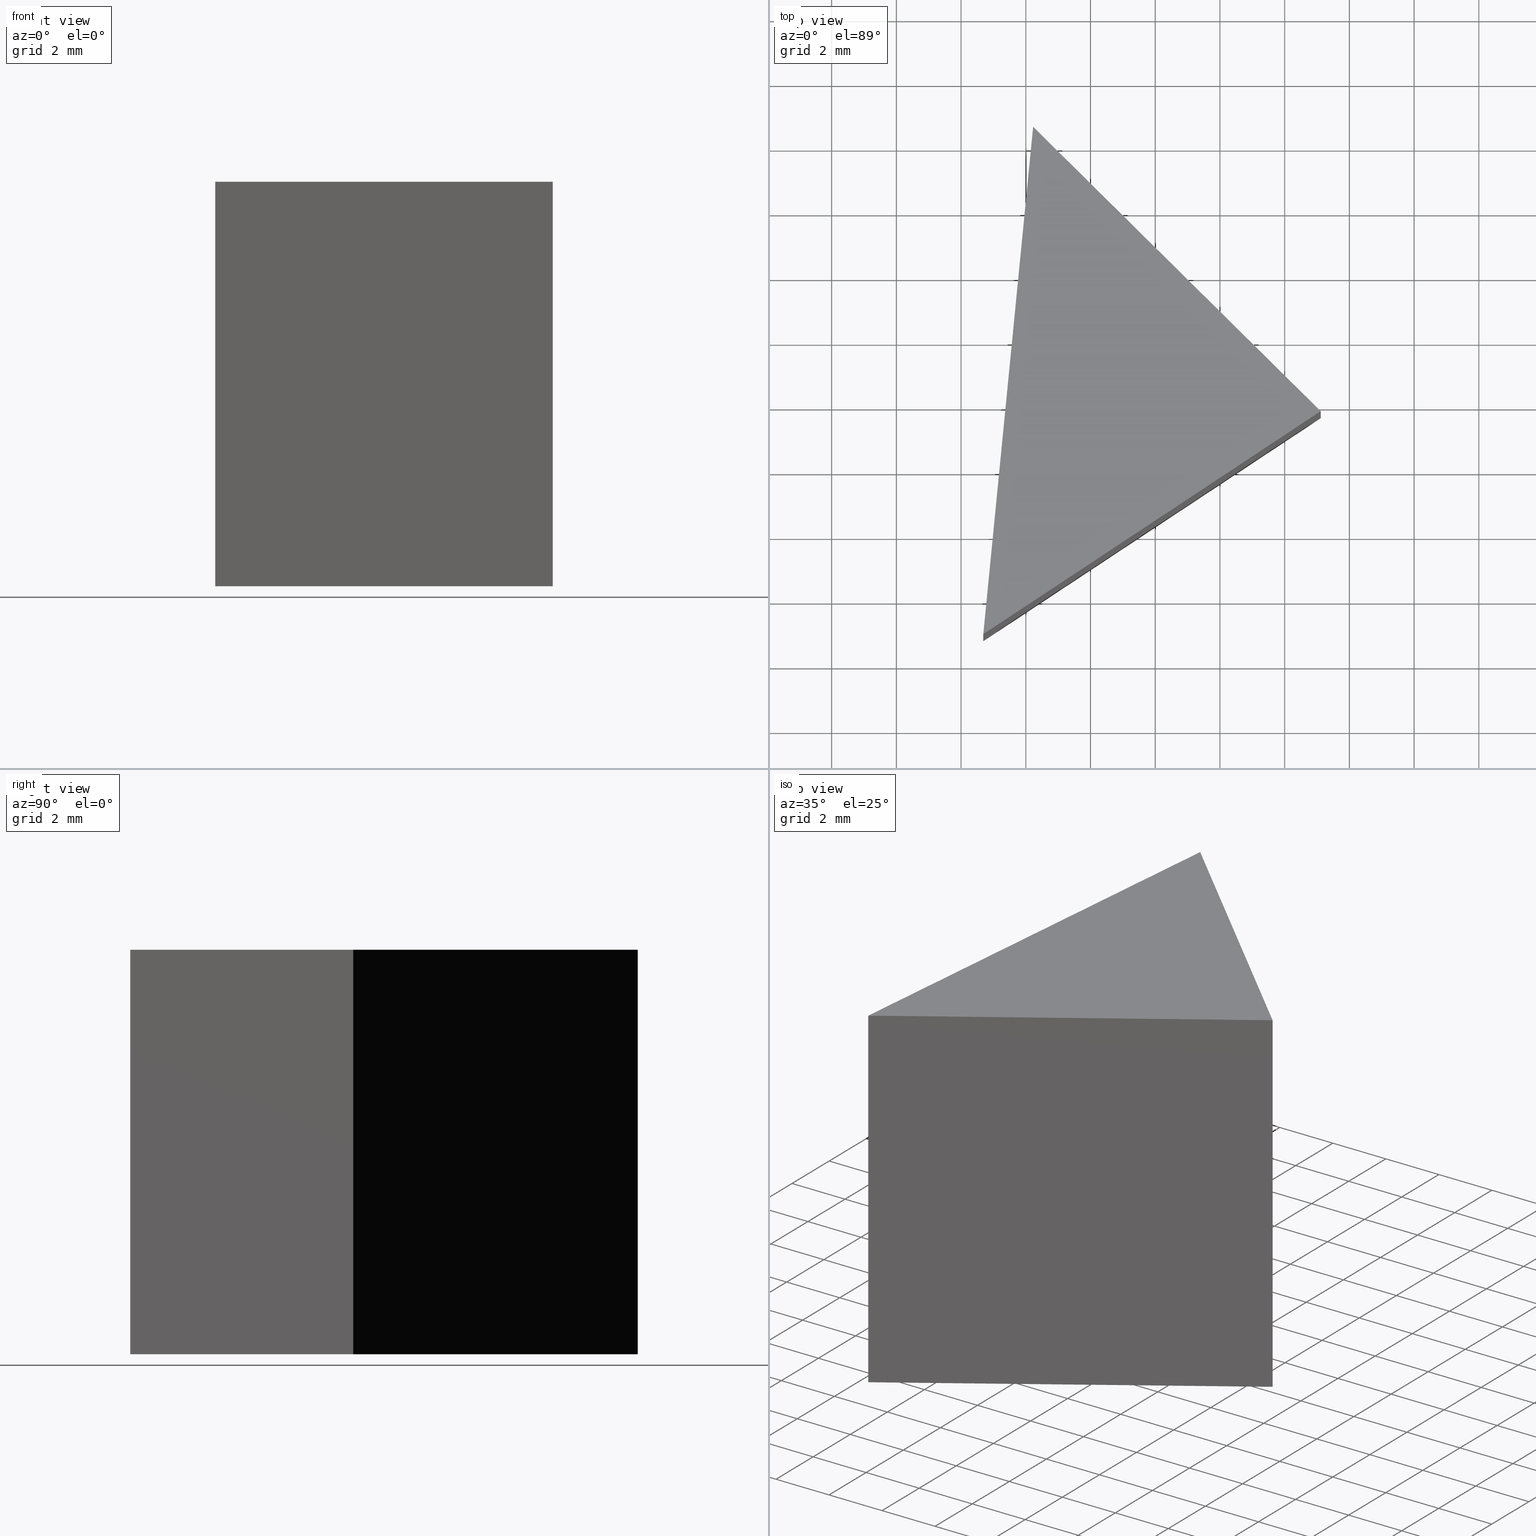
[diagram: canonical four-view strip — front | top / right | iso, engineering-drawing reading convention]
A machine part, canonical four-view strip (front | top / right | iso — engineering-drawing reading convention). The complete STEP part file that produces these views, byte-faithful:
ISO-10303-21;
HEADER;
FILE_DESCRIPTION (( 'STEP AP214' ),
    '1' );
FILE_NAME ('469002.STEP',
    '2019-08-23T02:32:26',
    ( 'user' ),
    ( '΢���й�' ),
    'SwSTEP 2.0',
    'SolidWorks 2016',
    '' );
FILE_SCHEMA (( 'AUTOMOTIVE_DESIGN' ));
ENDSEC;

DATA;
#1 = PRODUCT_CONTEXT ( 'NONE', #74, 'mechanical' ) ;
#2 = CARTESIAN_POINT ( 'NONE',  ( 11.11417082101136700, 7.739990180066555100, 0.0000000000000000000 ) ) ;
#3 = CARTESIAN_POINT ( 'NONE',  ( 11.11417082101136700, 7.739990180066555100, 0.0000000000000000000 ) ) ;
#4 = PRODUCT_DEFINITION ( 'δ֪', '', #60, #32 ) ;
#5 = EDGE_LOOP ( 'NONE', ( #106, #163, #100, #44 ) ) ;
#6 = ORIENTED_EDGE ( 'NONE', *, *, #133, .F. ) ;
#7 = ORIENTED_EDGE ( 'NONE', *, *, #155, .T. ) ;
#8 = SURFACE_STYLE_FILL_AREA ( #63 ) ;
#9 = EDGE_LOOP ( 'NONE', ( #113, #70, #119 ) ) ;
#10 = STYLED_ITEM ( 'NONE', ( #84 ), #111 ) ;
#11 = PLANE ( 'NONE',  #162 ) ;
#12 = SURFACE_SIDE_STYLE ('',( #86 ) ) ;
#13 = MECHANICAL_DESIGN_GEOMETRIC_PRESENTATION_REPRESENTATION (  '', ( #40 ), #165 ) ;
#14 =( NAMED_UNIT ( * ) SI_UNIT ( $, .STERADIAN. ) SOLID_ANGLE_UNIT ( ) );
#15 = CARTESIAN_POINT ( 'NONE',  ( 11.11417082101136700, 7.739990180066555100, 12.50000000000000000 ) ) ;
#16 = CARTESIAN_POINT ( 'NONE',  ( 2.227010525918083200, 16.53023374263736000, 12.50000000000000000 ) ) ;
#17 = DIRECTION ( 'NONE',  ( -0.7109728236074626100, 0.7032194850056644500, 0.0000000000000000000 ) ) ;
#18 = CARTESIAN_POINT ( 'NONE',  ( 11.11417082101136700, 7.739990180066555100, 12.50000000000000000 ) ) ;
#19 = CARTESIAN_POINT ( 'NONE',  ( 11.11417082101136700, 7.739990180066555100, 12.50000000000000000 ) ) ;
#20 = ORIENTED_EDGE ( 'NONE', *, *, #107, .T. ) ;
#21 = UNCERTAINTY_MEASURE_WITH_UNIT (LENGTH_MEASURE( 1.000000000000000100E-005 ), #114, 'distance_accuracy_value', 'NONE');
#22 = AXIS2_PLACEMENT_3D ( 'NONE', #15, #91, #153 ) ;
#23 = LINE ( 'NONE', #87, #122 ) ;
#24 = PRESENTATION_LAYER_ASSIGNMENT (  '', '', ( #10 ) ) ;
#25 = DIRECTION ( 'NONE',  ( 0.09777970958415391200, 0.9952080829623715100, 0.0000000000000000000 ) ) ;
#26 = APPLICATION_PROTOCOL_DEFINITION ( 'draft international standard', 'automotive_design', 1998, #94 ) ;
#27 = DIRECTION ( 'NONE',  ( -1.000000000000000000, 0.0000000000000000000, 0.0000000000000000000 ) ) ;
#28 = CARTESIAN_POINT ( 'NONE',  ( 2.227010525918083200, 16.53023374263736000, 0.0000000000000000000 ) ) ;
#29 = VERTEX_POINT ( 'NONE', #127 ) ;
#30 = LINE ( 'NONE', #142, #132 ) ;
#31 = AXIS2_PLACEMENT_3D ( 'NONE', #61, #51, #25 ) ;
#32 = PRODUCT_DEFINITION_CONTEXT ( 'detailed design', #94, 'design' ) ;
#33 = FACE_OUTER_BOUND ( 'NONE', #110, .T. ) ;
#34 = AXIS2_PLACEMENT_3D ( 'NONE', #102, #159, #167 ) ;
#35 = VERTEX_POINT ( 'NONE', #120 ) ;
#36 = UNCERTAINTY_MEASURE_WITH_UNIT (LENGTH_MEASURE( 1.000000000000000100E-005 ), #166, 'distance_accuracy_value', 'NONE');
#37 = ADVANCED_FACE ( 'NONE', ( #33 ), #95, .F. ) ;
#38 = CARTESIAN_POINT ( 'NONE',  ( 0.0000000000000000000, 0.0000000000000000000, 0.0000000000000000000 ) ) ;
#39 = CARTESIAN_POINT ( 'NONE',  ( 0.6861709744360347000, 0.8474711050240408800, 12.50000000000000000 ) ) ;
#40 = STYLED_ITEM ( 'NONE', ( #55 ), #56 ) ;
#41 = VERTEX_POINT ( 'NONE', #28 ) ;
#42 =( NAMED_UNIT ( * ) PLANE_ANGLE_UNIT ( ) SI_UNIT ( $, .RADIAN. ) );
#43 = VECTOR ( 'NONE', #54, 1000.000000000000100 ) ;
#44 = ORIENTED_EDGE ( 'NONE', *, *, #139, .T. ) ;
#45 = CARTESIAN_POINT ( 'NONE',  ( 11.11417082101136700, 7.739990180066555100, 12.50000000000000000 ) ) ;
#46 = VERTEX_POINT ( 'NONE', #66 ) ;
#47 = ORIENTED_EDGE ( 'NONE', *, *, #96, .F. ) ;
#48 = VECTOR ( 'NONE', #17, 1000.000000000000000 ) ;
#49 = EDGE_LOOP ( 'NONE', ( #47, #143, #67 ) ) ;
#50 = FACE_OUTER_BOUND ( 'NONE', #49, .T. ) ;
#51 = DIRECTION ( 'NONE',  ( 0.9952080829623715100, -0.09777970958415391200, 0.0000000000000000000 ) ) ;
#52 = SURFACE_STYLE_USAGE ( .BOTH. , #130 ) ;
#53 =( NAMED_UNIT ( * ) SI_UNIT ( $, .STERADIAN. ) SOLID_ANGLE_UNIT ( ) );
#54 = DIRECTION ( 'NONE',  ( 0.8342399877260263700, 0.5514015260034009800, -0.0000000000000000000 ) ) ;
#55 = PRESENTATION_STYLE_ASSIGNMENT (( #99 ) ) ;
#56 = ADVANCED_BREP_SHAPE_REPRESENTATION ( '469002', ( #111, #124 ), #161 ) ;
#57 = LINE ( 'NONE', #125, #89 ) ;
#58 = EDGE_CURVE ( 'NONE', #41, #137, #97, .T. ) ;
#59 =( NAMED_UNIT ( * ) PLANE_ANGLE_UNIT ( ) SI_UNIT ( $, .RADIAN. ) );
#60 = PRODUCT_DEFINITION_FORMATION_WITH_SPECIFIED_SOURCE ( '�κ�', '', #128, .NOT_KNOWN. ) ;
#61 = CARTESIAN_POINT ( 'NONE',  ( 0.6861709744360347000, 0.8474711050240408800, 12.50000000000000000 ) ) ;
#62 = ORIENTED_EDGE ( 'NONE', *, *, #96, .T. ) ;
#63 = FILL_AREA_STYLE ('',( #147 ) ) ;
#64 = FACE_OUTER_BOUND ( 'NONE', #5, .T. ) ;
#65 = DIRECTION ( 'NONE',  ( 0.0000000000000000000, 0.0000000000000000000, 1.000000000000000000 ) ) ;
#66 = CARTESIAN_POINT ( 'NONE',  ( 11.11417082101136700, 7.739990180066555100, 0.0000000000000000000 ) ) ;
#67 = ORIENTED_EDGE ( 'NONE', *, *, #69, .F. ) ;
#68 = FACE_OUTER_BOUND ( 'NONE', #9, .T. ) ;
#69 = EDGE_CURVE ( 'NONE', #46, #41, #108, .T. ) ;
#70 = ORIENTED_EDGE ( 'NONE', *, *, #79, .T. ) ;
#71 = FACE_OUTER_BOUND ( 'NONE', #83, .T. ) ;
#72 = DIRECTION ( 'NONE',  ( -0.7032194850056644500, -0.7109728236074626100, 0.0000000000000000000 ) ) ;
#73 = DIRECTION ( 'NONE',  ( -0.0000000000000000000, -0.0000000000000000000, -1.000000000000000000 ) ) ;
#74 = APPLICATION_CONTEXT ( 'automotive_design' ) ;
#75 = FILL_AREA_STYLE_COLOUR ( '', #121 ) ;
#76 = VECTOR ( 'NONE', #116, 1000.000000000000100 ) ;
#77 = VECTOR ( 'NONE', #73, 1000.000000000000000 ) ;
#78 = CLOSED_SHELL ( 'NONE', ( #152, #37, #141, #88, #98 ) ) ;
#79 = EDGE_CURVE ( 'NONE', #35, #29, #57, .T. ) ;
#80 = DIRECTION ( 'NONE',  ( 1.000000000000000000, 0.0000000000000000000, 0.0000000000000000000 ) ) ;
#81 = PLANE ( 'NONE',  #34 ) ;
#82 = EDGE_CURVE ( 'NONE', #29, #149, #23, .T. ) ;
#83 = EDGE_LOOP ( 'NONE', ( #62, #104, #6, #7 ) ) ;
#84 = PRESENTATION_STYLE_ASSIGNMENT (( #52 ) ) ;
#85 = MECHANICAL_DESIGN_GEOMETRIC_PRESENTATION_REPRESENTATION (  '', ( #10 ), #115 ) ;
#86 = SURFACE_STYLE_FILL_AREA ( #168 ) ;
#87 = CARTESIAN_POINT ( 'NONE',  ( 0.6861709744360347000, 0.8474711050240408800, 12.50000000000000000 ) ) ;
#88 = ADVANCED_FACE ( 'NONE', ( #68 ), #11, .F. ) ;
#89 = VECTOR ( 'NONE', #140, 1000.000000000000000 ) ;
#90 = APPLICATION_PROTOCOL_DEFINITION ( 'draft international standard', 'automotive_design', 1998, #74 ) ;
#91 = DIRECTION ( 'NONE',  ( -0.5514015260034010900, 0.8342399877260264800, 0.0000000000000000000 ) ) ;
#92 = LINE ( 'NONE', #45, #164 ) ;
#93 = DIRECTION ( 'NONE',  ( 0.8342399877260263700, 0.5514015260034009800, -0.0000000000000000000 ) ) ;
#94 = APPLICATION_CONTEXT ( 'automotive_design' ) ;
#95 = PLANE ( 'NONE',  #117 ) ;
#96 = EDGE_CURVE ( 'NONE', #137, #46, #105, .T. ) ;
#97 = LINE ( 'NONE', #160, #76 ) ;
#98 = ADVANCED_FACE ( 'NONE', ( #50 ), #81, .T. ) ;
#99 = SURFACE_STYLE_USAGE ( .BOTH. , #12 ) ;
#100 = ORIENTED_EDGE ( 'NONE', *, *, #82, .F. ) ;
#101 =( NAMED_UNIT ( * ) SI_UNIT ( $, .STERADIAN. ) SOLID_ANGLE_UNIT ( ) );
#102 = CARTESIAN_POINT ( 'NONE',  ( 0.0000000000000000000, 0.0000000000000000000, 0.0000000000000000000 ) ) ;
#103 = DIRECTION ( 'NONE',  ( 0.7109728236074626100, -0.7032194850056644500, 0.0000000000000000000 ) ) ;
#104 = ORIENTED_EDGE ( 'NONE', *, *, #107, .F. ) ;
#105 = LINE ( 'NONE', #2, #43 ) ;
#106 = ORIENTED_EDGE ( 'NONE', *, *, #58, .T. ) ;
#107 = EDGE_CURVE ( 'NONE', #35, #46, #146, .T. ) ;
#108 = LINE ( 'NONE', #3, #48 ) ;
#109 = LINE ( 'NONE', #16, #136 ) ;
#110 = EDGE_LOOP ( 'NONE', ( #169, #138, #151, #20 ) ) ;
#111 = MANIFOLD_SOLID_BREP ( '͹̨-����1', #78 ) ;
#112 = DIRECTION ( 'NONE',  ( -0.0000000000000000000, -0.0000000000000000000, -1.000000000000000000 ) ) ;
#113 = ORIENTED_EDGE ( 'NONE', *, *, #133, .T. ) ;
#114 =( LENGTH_UNIT ( ) NAMED_UNIT ( * ) SI_UNIT ( .MILLI., .METRE. ) );
#115 =( GEOMETRIC_REPRESENTATION_CONTEXT ( 3 ) GLOBAL_UNCERTAINTY_ASSIGNED_CONTEXT ( ( #21 ) ) GLOBAL_UNIT_ASSIGNED_CONTEXT ( ( #114, #42, #101 ) ) REPRESENTATION_CONTEXT ( 'NONE', 'WORKASPACE' ) );
#116 = DIRECTION ( 'NONE',  ( -0.09777970958415389800, -0.9952080829623715100, -0.0000000000000000000 ) ) ;
#117 = AXIS2_PLACEMENT_3D ( 'NONE', #19, #72, #103 ) ;
#118 = DIRECTION ( 'NONE',  ( 0.0000000000000000000, 0.0000000000000000000, -1.000000000000000000 ) ) ;
#119 = ORIENTED_EDGE ( 'NONE', *, *, #82, .T. ) ;
#120 = CARTESIAN_POINT ( 'NONE',  ( 11.11417082101136700, 7.739990180066555100, 12.50000000000000000 ) ) ;
#121 = COLOUR_RGB ( '',1.000000000000000000, 1.000000000000000000, 1.000000000000000000 ) ;
#122 = VECTOR ( 'NONE', #135, 1000.000000000000100 ) ;
#123 = SHAPE_DEFINITION_REPRESENTATION ( #150, #56 ) ;
#124 = AXIS2_PLACEMENT_3D ( 'NONE', #38, #65, #80 ) ;
#125 = CARTESIAN_POINT ( 'NONE',  ( 11.11417082101136700, 7.739990180066555100, 12.50000000000000000 ) ) ;
#126 = PRODUCT_RELATED_PRODUCT_CATEGORY ( 'part', '', ( #128 ) ) ;
#127 = CARTESIAN_POINT ( 'NONE',  ( 2.227010525918083200, 16.53023374263736000, 12.50000000000000000 ) ) ;
#128 = PRODUCT ( '469002', '469002', '', ( #1 ) ) ;
#129 = PLANE ( 'NONE',  #22 ) ;
#130 = SURFACE_SIDE_STYLE ('',( #8 ) ) ;
#131 =( LENGTH_UNIT ( ) NAMED_UNIT ( * ) SI_UNIT ( .MILLI., .METRE. ) );
#132 = VECTOR ( 'NONE', #112, 1000.000000000000000 ) ;
#133 = EDGE_CURVE ( 'NONE', #149, #35, #92, .T. ) ;
#134 = CARTESIAN_POINT ( 'NONE',  ( 0.0000000000000000000, 0.0000000000000000000, 12.50000000000000000 ) ) ;
#135 = DIRECTION ( 'NONE',  ( -0.09777970958415389800, -0.9952080829623715100, -0.0000000000000000000 ) ) ;
#136 = VECTOR ( 'NONE', #144, 1000.000000000000000 ) ;
#137 = VERTEX_POINT ( 'NONE', #145 ) ;
#138 = ORIENTED_EDGE ( 'NONE', *, *, #139, .F. ) ;
#139 = EDGE_CURVE ( 'NONE', #29, #41, #109, .T. ) ;
#140 = DIRECTION ( 'NONE',  ( -0.7109728236074626100, 0.7032194850056644500, 0.0000000000000000000 ) ) ;
#141 = ADVANCED_FACE ( 'NONE', ( #64 ), #154, .F. ) ;
#142 = CARTESIAN_POINT ( 'NONE',  ( 0.6861709744360347000, 0.8474711050240408800, 12.50000000000000000 ) ) ;
#143 = ORIENTED_EDGE ( 'NONE', *, *, #58, .F. ) ;
#144 = DIRECTION ( 'NONE',  ( -0.0000000000000000000, -0.0000000000000000000, -1.000000000000000000 ) ) ;
#145 = CARTESIAN_POINT ( 'NONE',  ( 0.6861709744360347000, 0.8474711050240408800, 0.0000000000000000000 ) ) ;
#146 = LINE ( 'NONE', #18, #77 ) ;
#147 = FILL_AREA_STYLE_COLOUR ( '', #148 ) ;
#148 = COLOUR_RGB ( '',1.000000000000000000, 1.000000000000000000, 1.000000000000000000 ) ;
#149 = VERTEX_POINT ( 'NONE', #39 ) ;
#150 = PRODUCT_DEFINITION_SHAPE ( 'NONE', 'NONE',  #4 ) ;
#151 = ORIENTED_EDGE ( 'NONE', *, *, #79, .F. ) ;
#152 = ADVANCED_FACE ( 'NONE', ( #71 ), #129, .F. ) ;
#153 = DIRECTION ( 'NONE',  ( -0.8342399877260263700, -0.5514015260034009800, 0.0000000000000000000 ) ) ;
#154 = PLANE ( 'NONE',  #31 ) ;
#155 = EDGE_CURVE ( 'NONE', #149, #137, #30, .T. ) ;
#156 =( NAMED_UNIT ( * ) PLANE_ANGLE_UNIT ( ) SI_UNIT ( $, .RADIAN. ) );
#157 = PRESENTATION_LAYER_ASSIGNMENT (  '', '', ( #40 ) ) ;
#158 = UNCERTAINTY_MEASURE_WITH_UNIT (LENGTH_MEASURE( 1.000000000000000100E-005 ), #131, 'distance_accuracy_value', 'NONE');
#159 = DIRECTION ( 'NONE',  ( 0.0000000000000000000, 0.0000000000000000000, -1.000000000000000000 ) ) ;
#160 = CARTESIAN_POINT ( 'NONE',  ( 0.6861709744360347000, 0.8474711050240408800, 0.0000000000000000000 ) ) ;
#161 =( GEOMETRIC_REPRESENTATION_CONTEXT ( 3 ) GLOBAL_UNCERTAINTY_ASSIGNED_CONTEXT ( ( #36 ) ) GLOBAL_UNIT_ASSIGNED_CONTEXT ( ( #166, #59, #14 ) ) REPRESENTATION_CONTEXT ( 'NONE', 'WORKASPACE' ) );
#162 = AXIS2_PLACEMENT_3D ( 'NONE', #134, #118, #27 ) ;
#163 = ORIENTED_EDGE ( 'NONE', *, *, #155, .F. ) ;
#164 = VECTOR ( 'NONE', #93, 1000.000000000000100 ) ;
#165 =( GEOMETRIC_REPRESENTATION_CONTEXT ( 3 ) GLOBAL_UNCERTAINTY_ASSIGNED_CONTEXT ( ( #158 ) ) GLOBAL_UNIT_ASSIGNED_CONTEXT ( ( #131, #156, #53 ) ) REPRESENTATION_CONTEXT ( 'NONE', 'WORKASPACE' ) );
#166 =( LENGTH_UNIT ( ) NAMED_UNIT ( * ) SI_UNIT ( .MILLI., .METRE. ) );
#167 = DIRECTION ( 'NONE',  ( -1.000000000000000000, 0.0000000000000000000, 0.0000000000000000000 ) ) ;
#168 = FILL_AREA_STYLE ('',( #75 ) ) ;
#169 = ORIENTED_EDGE ( 'NONE', *, *, #69, .T. ) ;
ENDSEC;
END-ISO-10303-21;
